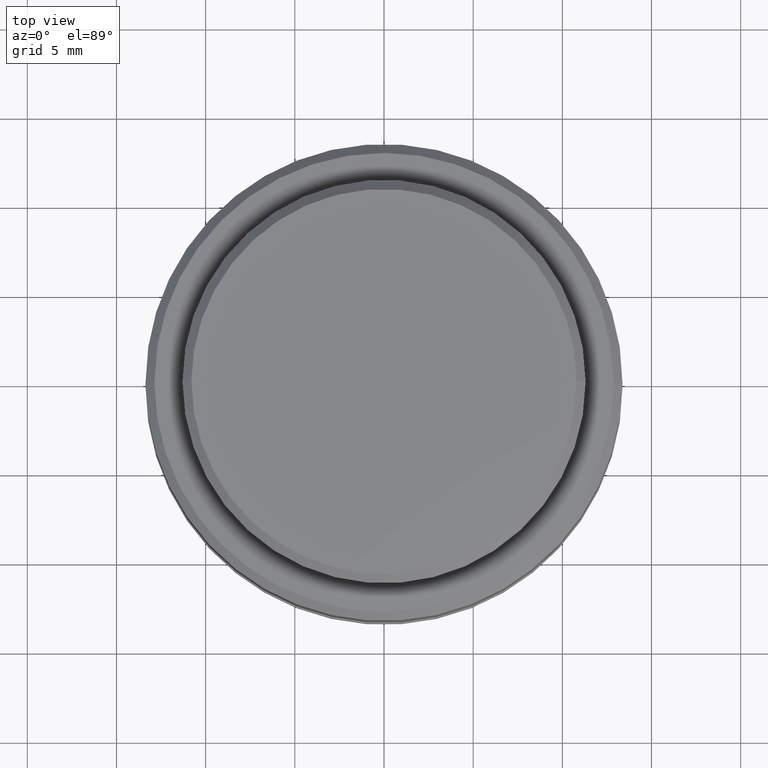
[diagram: clean part render]
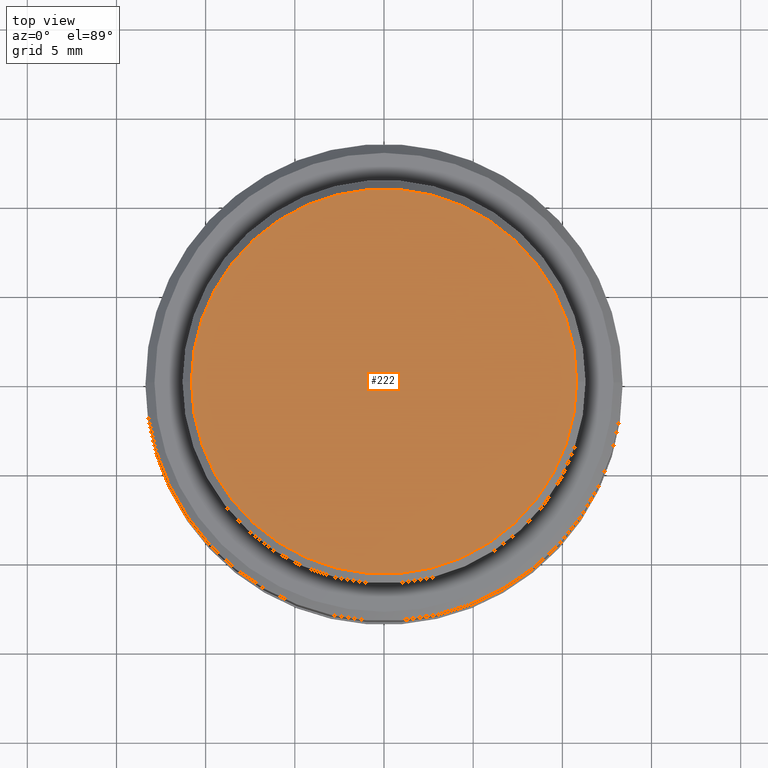
[diagram: same view with one face highlighted and labeled with its STEP entity id]
A machine part, top view. The second image highlights one B-rep face of the part: STEP entity #222.
In plain terms, the highlighted planar face has unit normal (0, 0, 1).
Its self-contained STEP definition (entity closure, byte-faithful):
#71 = DIRECTION ( 'NONE',  ( 0.0000000000000000000, 0.0000000000000000000, 1.000000000000000000 ) ) ;
#88 = DIRECTION ( 'NONE',  ( 0.0000000000000000000, 0.0000000000000000000, 1.000000000000000000 ) ) ;
#133 = VERTEX_POINT ( 'NONE', #231 ) ;
#154 = ORIENTED_EDGE ( 'NONE', *, *, #297, .T. ) ;
#163 = DIRECTION ( 'NONE',  ( 0.0000000000000000000, 0.0000000000000000000, 1.000000000000000000 ) ) ;
#196 = CARTESIAN_POINT ( 'NONE',  ( 10.79999999999999400, 1.353234713057825100E-015, 16.00000000000000000 ) ) ;
#222 = ADVANCED_FACE ( 'NONE', ( #519 ), #354, .T. ) ;
#231 = CARTESIAN_POINT ( 'NONE',  ( -10.79999999999999400, 0.0000000000000000000, 16.00000000000000000 ) ) ;
#297 = EDGE_CURVE ( 'NONE', #460, #133, #522, .T. ) ;
#348 = AXIS2_PLACEMENT_3D ( 'NONE', #495, #88, #351 ) ;
#351 = DIRECTION ( 'NONE',  ( 1.000000000000000000, 0.0000000000000000000, -0.0000000000000000000 ) ) ;
#354 = PLANE ( 'NONE',  #348 ) ;
#372 = ORIENTED_EDGE ( 'NONE', *, *, #390, .T. ) ;
#377 = CARTESIAN_POINT ( 'NONE',  ( 0.0000000000000000000, 0.0000000000000000000, 16.00000000000000000 ) ) ;
#390 = EDGE_CURVE ( 'NONE', #133, #460, #477, .T. ) ;
#405 = EDGE_LOOP ( 'NONE', ( #372, #154 ) ) ;
#428 = DIRECTION ( 'NONE',  ( 1.000000000000000000, 0.0000000000000000000, 0.0000000000000000000 ) ) ;
#433 = DIRECTION ( 'NONE',  ( 1.000000000000000000, 0.0000000000000000000, 0.0000000000000000000 ) ) ;
#458 = AXIS2_PLACEMENT_3D ( 'NONE', #480, #163, #433 ) ;
#460 = VERTEX_POINT ( 'NONE', #196 ) ;
#477 = CIRCLE ( 'NONE', #458, 10.79999999999999400 ) ;
#480 = CARTESIAN_POINT ( 'NONE',  ( 0.0000000000000000000, 0.0000000000000000000, 16.00000000000000000 ) ) ;
#495 = CARTESIAN_POINT ( 'NONE',  ( 0.0000000000000000000, 0.0000000000000000000, 16.00000000000000000 ) ) ;
#519 = FACE_OUTER_BOUND ( 'NONE', #405, .T. ) ;
#522 = CIRCLE ( 'NONE', #537, 10.79999999999999400 ) ;
#537 = AXIS2_PLACEMENT_3D ( 'NONE', #377, #71, #428 ) ;